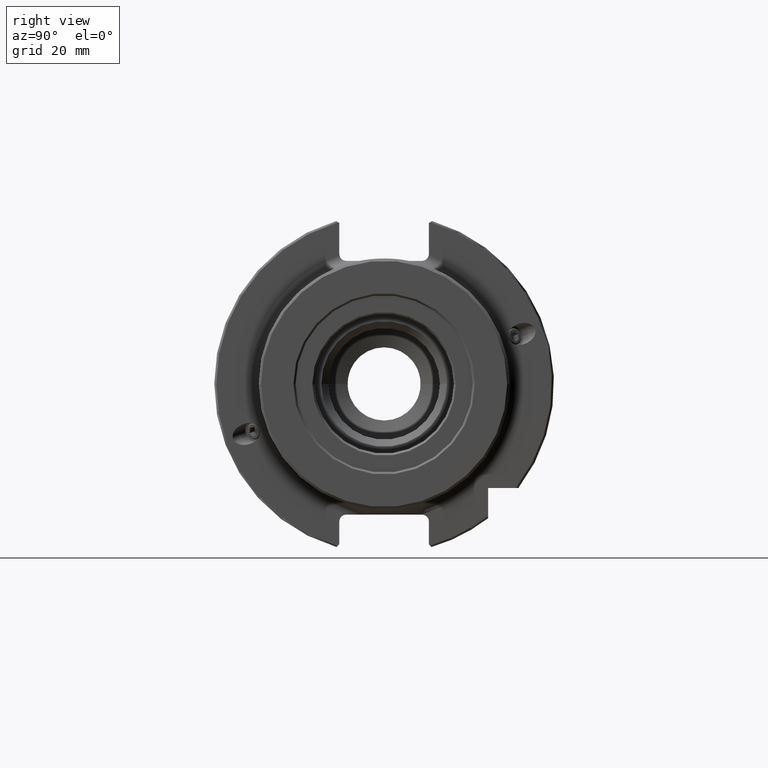
[diagram: clean part render]
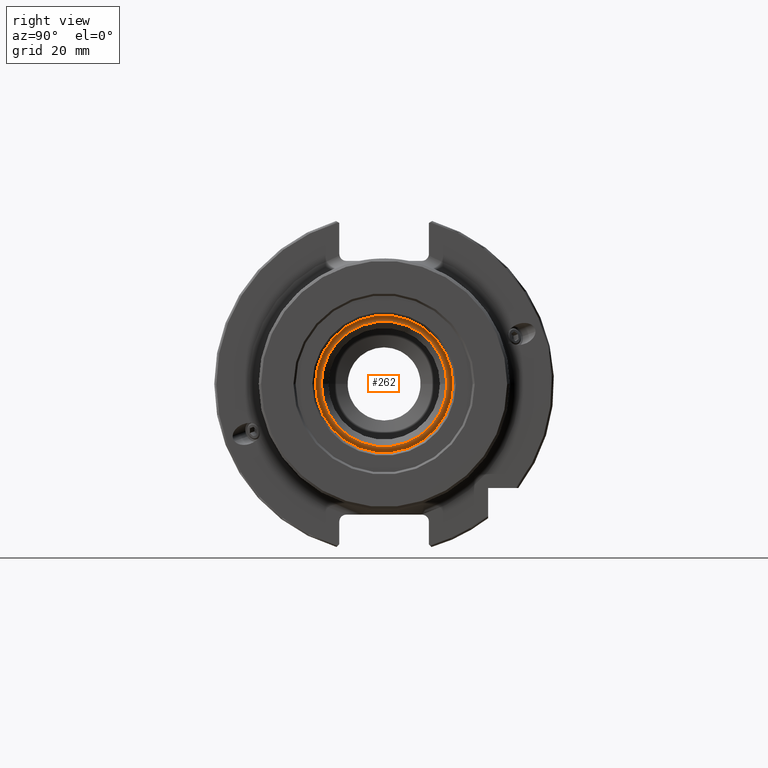
[diagram: same view with one face highlighted and labeled with its STEP entity id]
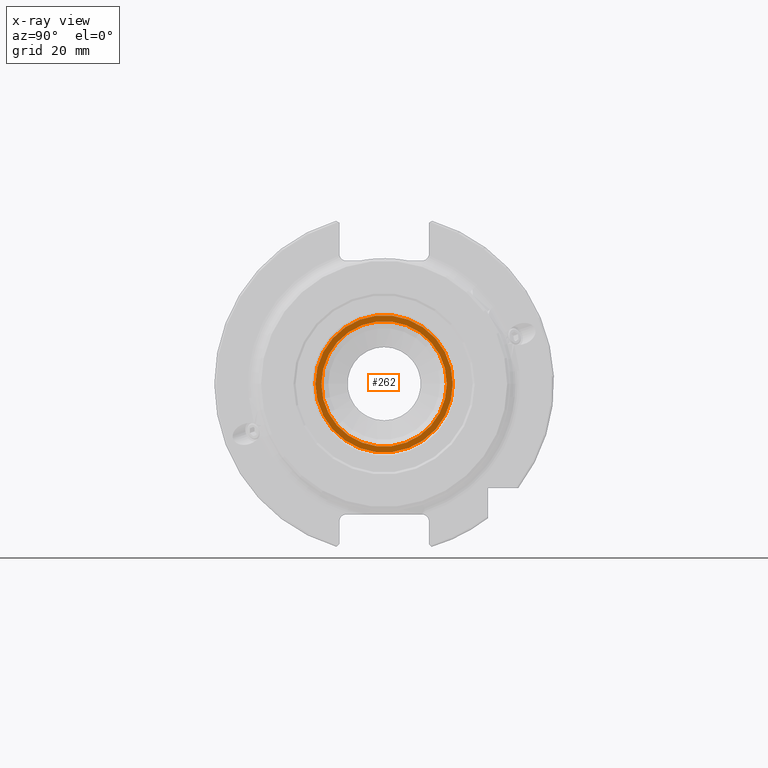
[diagram: x-ray of the same camera — body ghosted, the highlighted face saturated]
A machine part, right view. The second image highlights one B-rep face of the part: STEP entity #262.
The next image is the same camera in x-ray: the body ghosted, the highlighted face saturated — about 0% of this face is hidden behind the body in this view.
In plain terms, the highlighted planar face has unit normal (1, 0, 0).
Its self-contained STEP definition (entity closure, byte-faithful):
#48 = CARTESIAN_POINT ( 'NONE',  ( 18.24999999999997900, 19.70000000000000600, 0.0000000000000000000 ) ) ;
#60 = AXIS2_PLACEMENT_3D ( 'NONE', #1663, #4938, #2120 ) ;
#149 = ORIENTED_EDGE ( 'NONE', *, *, #256, .T. ) ;
#153 = ORIENTED_EDGE ( 'NONE', *, *, #5605, .T. ) ;
#158 = ORIENTED_EDGE ( 'NONE', *, *, #5909, .F. ) ;
#230 = ORIENTED_EDGE ( 'NONE', *, *, #1534, .F. ) ;
#256 = EDGE_CURVE ( 'NONE', #2886, #3587, #1433, .T. ) ;
#262 = ADVANCED_FACE ( 'NONE', ( #1363, #1360 ), #5480, .T. ) ;
#267 = AXIS2_PLACEMENT_3D ( 'NONE', #4772, #1963, #5225 ) ;
#400 = CARTESIAN_POINT ( 'NONE',  ( 18.24999999999998600, -19.69999999999999900, 2.449293598294707700E-015 ) ) ;
#714 = DIRECTION ( 'NONE',  ( -1.541467589183333400E-016, 1.000000000000000000, 0.0000000000000000000 ) ) ;
#841 = EDGE_LOOP ( 'NONE', ( #158, #230 ) ) ;
#962 = DIRECTION ( 'NONE',  ( 1.000000000000000000, 1.541467589183333400E-016, -0.0000000000000000000 ) ) ;
#1360 = FACE_BOUND ( 'NONE', #841, .T. ) ;
#1363 = FACE_OUTER_BOUND ( 'NONE', #4769, .T. ) ;
#1433 = CIRCLE ( 'NONE', #2359, 19.70000000000000300 ) ;
#1534 = EDGE_CURVE ( 'NONE', #4217, #5390, #1709, .T. ) ;
#1663 = CARTESIAN_POINT ( 'NONE',  ( 18.24999999999998200, 4.126860429938755300E-015, 0.0000000000000000000 ) ) ;
#1709 = CIRCLE ( 'NONE', #5339, 17.99999999999999600 ) ;
#1773 = CIRCLE ( 'NONE', #60, 19.70000000000000300 ) ;
#1963 = DIRECTION ( 'NONE',  ( 1.000000000000000000, 1.541467589183333400E-016, -0.0000000000000000000 ) ) ;
#2120 = DIRECTION ( 'NONE',  ( -1.761140584748027200E-016, 1.000000000000000000, 0.0000000000000000000 ) ) ;
#2359 = AXIS2_PLACEMENT_3D ( 'NONE', #3138, #962, #3049 ) ;
#2781 = CARTESIAN_POINT ( 'NONE',  ( 18.24999999999999300, 18.00000000000000000, 0.0000000000000000000 ) ) ;
#2886 = VERTEX_POINT ( 'NONE', #48 ) ;
#2887 = CIRCLE ( 'NONE', #267, 17.99999999999999600 ) ;
#2987 = DIRECTION ( 'NONE',  ( 1.000000000000000000, 1.541467589183333400E-016, -0.0000000000000000000 ) ) ;
#3049 = DIRECTION ( 'NONE',  ( -1.761140584748027200E-016, 1.000000000000000000, 0.0000000000000000000 ) ) ;
#3138 = CARTESIAN_POINT ( 'NONE',  ( 18.24999999999998200, 4.126860429938755300E-015, 0.0000000000000000000 ) ) ;
#3234 = CARTESIAN_POINT ( 'NONE',  ( 18.24999999999999600, 4.126860429938757700E-015, 0.0000000000000000000 ) ) ;
#3258 = AXIS2_PLACEMENT_3D ( 'NONE', #5760, #2987, #714 ) ;
#3587 = VERTEX_POINT ( 'NONE', #400 ) ;
#4217 = VERTEX_POINT ( 'NONE', #4753 ) ;
#4753 = CARTESIAN_POINT ( 'NONE',  ( 18.25000000000000000, -17.99999999999999300, 2.204364238465235000E-015 ) ) ;
#4769 = EDGE_LOOP ( 'NONE', ( #149, #153 ) ) ;
#4772 = CARTESIAN_POINT ( 'NONE',  ( 18.24999999999999600, 4.126860429938757700E-015, 0.0000000000000000000 ) ) ;
#4938 = DIRECTION ( 'NONE',  ( 1.000000000000000000, 1.541467589183333400E-016, -0.0000000000000000000 ) ) ;
#5225 = DIRECTION ( 'NONE',  ( -1.927470528863119300E-016, 1.000000000000000000, 0.0000000000000000000 ) ) ;
#5339 = AXIS2_PLACEMENT_3D ( 'NONE', #3234, #5956, #5922 ) ;
#5390 = VERTEX_POINT ( 'NONE', #2781 ) ;
#5480 = PLANE ( 'NONE',  #3258 ) ;
#5605 = EDGE_CURVE ( 'NONE', #3587, #2886, #1773, .T. ) ;
#5760 = CARTESIAN_POINT ( 'NONE',  ( 18.24999999999998900, 19.70000000000000600, 0.0000000000000000000 ) ) ;
#5909 = EDGE_CURVE ( 'NONE', #5390, #4217, #2887, .T. ) ;
#5922 = DIRECTION ( 'NONE',  ( -1.927470528863119300E-016, 1.000000000000000000, 0.0000000000000000000 ) ) ;
#5956 = DIRECTION ( 'NONE',  ( 1.000000000000000000, 1.541467589183333400E-016, -0.0000000000000000000 ) ) ;